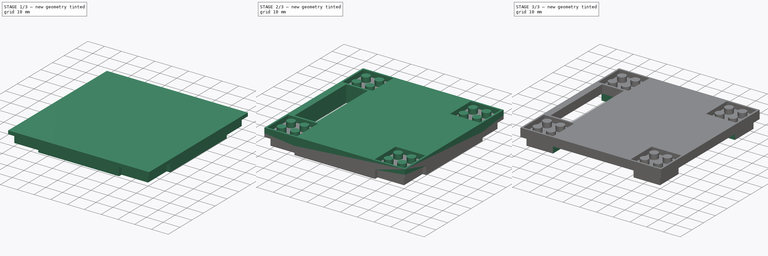
[diagram: build sequence overview — one tinted view per stage of 3, left to right]
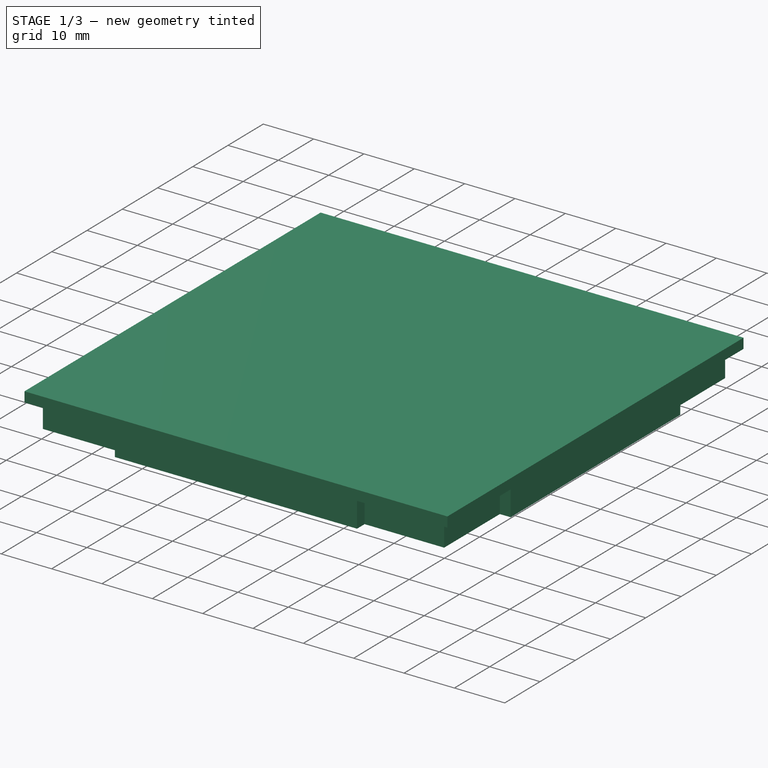
[diagram: stage 1 of 3 — iso view after this stage's code; geometry added in this stage tinted green]
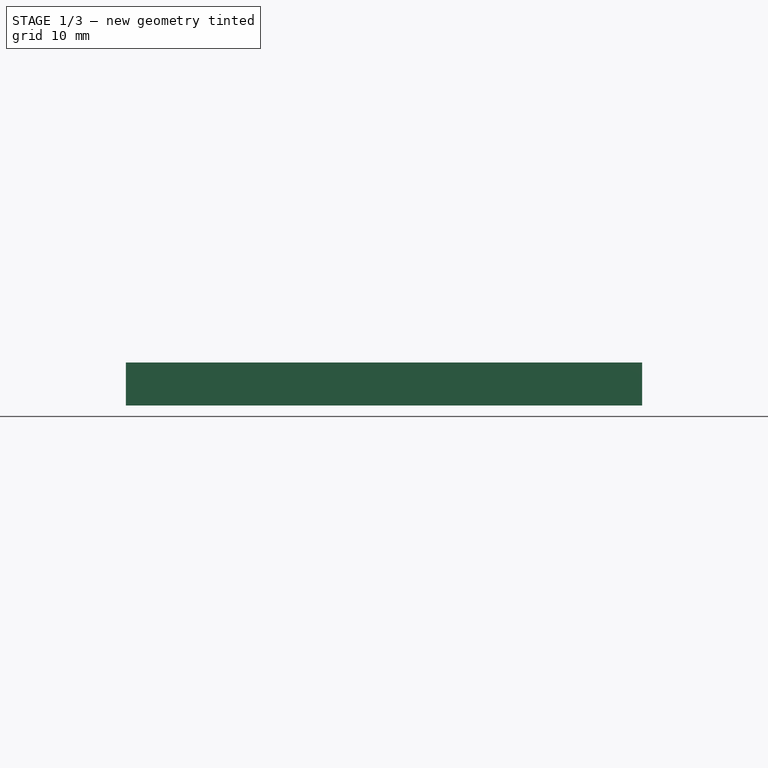
[diagram: stage 1 of 3 — front view after this stage's code; geometry added in this stage tinted green]
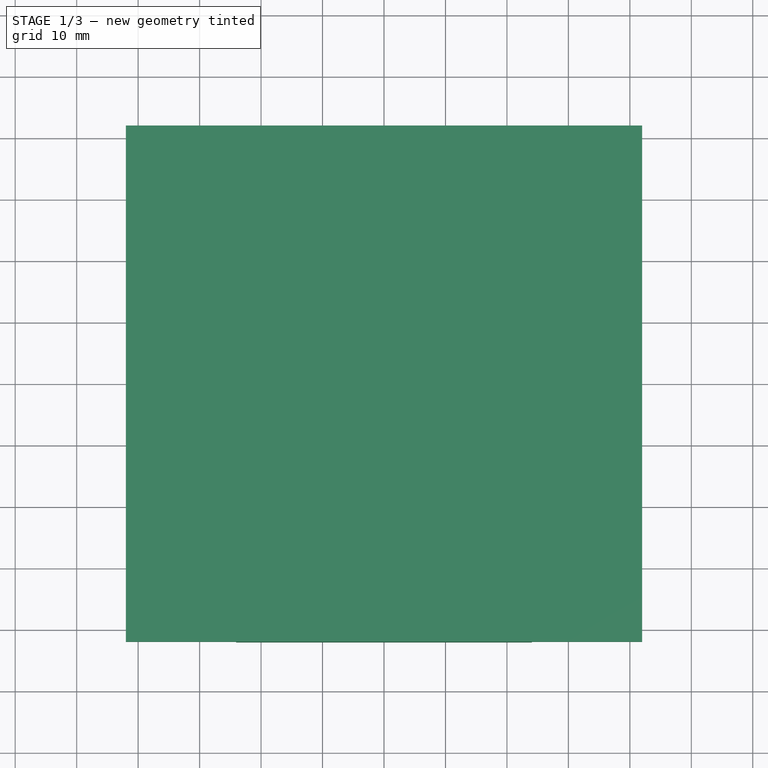
[diagram: stage 1 of 3 — top view after this stage's code; geometry added in this stage tinted green]
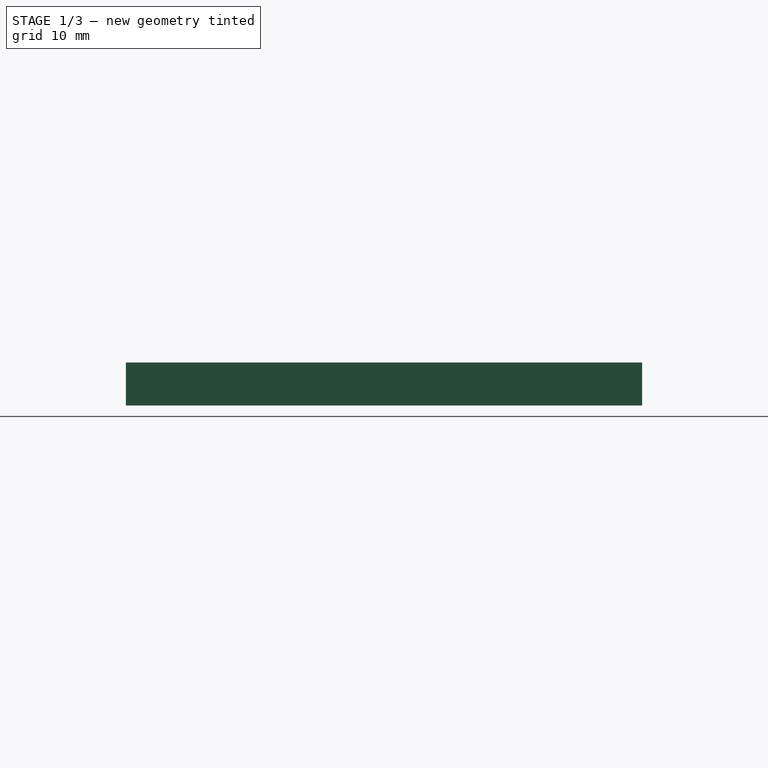
[diagram: stage 1 of 3 — right view after this stage's code; geometry added in this stage tinted green]
FCSTD DOCUMENT  (FreeCAD 0.15R4604 (Git))
Label: Turtles_Filter_Head_1
License: CC-BY 3.0
LicenseURL: http://creativecommons.org/licenses/by/3.0/
objects: Sketcher::SketchObject×7, PartDesign::Pocket×4, PartDesign::Pad×3
note: 21 computed .brp shape members not serialized (recipe doc carries the construction recipe); baked Part::Feature solids carry a one-line shape summary decoded from their .brp

FEATURE [Sketcher::SketchObject] Sketch  label="Starting_Pad_Sketch"
  sketch-geometry (4):
    g0: LineSegment StartX=-42 StartY=42 StartZ=0 EndX=-42 EndY=-42 EndZ=0
    g1: LineSegment StartX=-42 StartY=-42 StartZ=0 EndX=42 EndY=-42 EndZ=0
    g2: LineSegment StartX=42 StartY=-42 StartZ=0 EndX=42 EndY=42 EndZ=0
    g3: LineSegment StartX=42 StartY=42 StartZ=0 EndX=-42 EndY=42 EndZ=0
  constraints (11):
    c: Coincident(g0,g1)
    c: Coincident(g1,g2)
    c: Coincident(g2,g3)
    c: Coincident(g3,g0)
    c: DistanceX(g3) = -84
    c: DistanceY(g2) = 84
    c: DistanceY(g0) = -84
    c: DistanceX(g1) = 84
    c: Vertical(g0)
    c: Horizontal(g1)
    c: Symmetric(g0,g2,g-1)
FEATURE [PartDesign::Pad] Pad  label="Starting_Pad"
  Length = 7
  Length2 = 20
  Sketch = -> Sketch
  Type = 0
FEATURE [Sketcher::SketchObject] Sketch006  label="Lego_Female_Pocket_Sketch"
  Placement = pos=(0,0,0) rot=(1,0,0;3.14159rad)
  Support = -> Pad [Face5]
  sketch-geometry (44):
    g0: LineSegment StartX=-38.65 StartY=38.65 StartZ=0 EndX=-25.25 EndY=38.65 EndZ=0
    g1: LineSegment StartX=-25.25 StartY=38.65 StartZ=0 EndX=-25.25 EndY=25.25 EndZ=0
    g2: LineSegment StartX=-25.25 StartY=25.25 StartZ=0 EndX=-38.65 EndY=25.25 EndZ=0
    g3: LineSegment StartX=-38.65 StartY=25.25 StartZ=0 EndX=-38.65 EndY=38.65 EndZ=0
    g4: Circle CenterX=-31.95 CenterY=31.95 CenterZ=0 NormalX=0 NormalY=0 NormalZ=1 Radius=3.25
    g5: LineSegment StartX=25.25 StartY=38.65 StartZ=0 EndX=38.65 EndY=38.65 EndZ=0
    g6: LineSegment StartX=38.65 StartY=38.65 StartZ=0 EndX=38.65 EndY=25.25 EndZ=0
    g7: LineSegment StartX=38.65 StartY=25.25 StartZ=0 EndX=25.25 EndY=25.25 EndZ=0
    g8: LineSegment StartX=25.25 StartY=25.25 StartZ=0 EndX=25.25 EndY=38.65 EndZ=0
    g9: Circle CenterX=31.95 CenterY=31.95 CenterZ=0 NormalX=0 NormalY=0 NormalZ=1 Radius=3.25
    g10: LineSegment StartX=-38.65 StartY=-38.65 StartZ=0 EndX=-25.25 EndY=-38.65 EndZ=0
    g11: LineSegment StartX=-25.25 StartY=-38.65 StartZ=0 EndX=-25.25 EndY=-25.25 EndZ=0
    g12: LineSegment StartX=-25.25 StartY=-25.25 StartZ=0 EndX=-38.65 EndY=-25.25 EndZ=0
    g13: LineSegment StartX=-38.65 StartY=-25.25 StartZ=0 EndX=-38.65 EndY=-38.65 EndZ=0
    g14: Circle CenterX=-31.95 CenterY=-31.95 CenterZ=0 NormalX=0 NormalY=0 NormalZ=1 Radius=3.25
    g15: LineSegment StartX=25.25 StartY=-25.25 StartZ=0 EndX=38.65 EndY=-25.25 EndZ=0
    g16: LineSegment StartX=38.65 StartY=-25.25 StartZ=0 EndX=38.65 EndY=-38.65 EndZ=0
    g17: LineSegment StartX=38.65 StartY=-38.65 StartZ=0 EndX=25.25 EndY=-38.65 EndZ=0
    g18: LineSegment StartX=25.25 StartY=-38.65 StartZ=0 EndX=25.25 EndY=-25.25 EndZ=0
    g19: Circle CenterX=31.95 CenterY=-31.95 CenterZ=0 NormalX=0 NormalY=0 NormalZ=1 Radius=3.25
    g20: LineSegment StartX=-42 StartY=-24.05 StartZ=0 EndX=-42 EndY=-42 EndZ=0
    g21: LineSegment StartX=-42 StartY=-42 StartZ=0 EndX=-24.05 EndY=-42 EndZ=0
    g22: LineSegment StartX=-24.05 StartY=-42 StartZ=0 EndX=-24.05 EndY=-39.85 EndZ=0
    g23: LineSegment StartX=-24.05 StartY=-39.85 StartZ=0 EndX=-39.85 EndY=-39.85 EndZ=0
    g24: LineSegment StartX=-39.85 StartY=-39.85 StartZ=0 EndX=-39.85 EndY=-24.05 EndZ=0
    g25: LineSegment StartX=-39.85 StartY=-24.05 StartZ=0 EndX=-42 EndY=-24.05 EndZ=0
    g26: LineSegment StartX=24.05 StartY=-42 StartZ=0 EndX=42 EndY=-42 EndZ=0
    g27: LineSegment StartX=42 StartY=-42 StartZ=0 EndX=42 EndY=-24.05 EndZ=0
    g28: LineSegment StartX=42 StartY=-24.05 StartZ=0 EndX=39.85 EndY=-24.05 EndZ=0
    g29: LineSegment StartX=39.85 StartY=-24.05 StartZ=0 EndX=39.85 EndY=-39.85 EndZ=0
    g30: LineSegment StartX=39.85 StartY=-39.85 StartZ=0 EndX=24.05 EndY=-39.85 EndZ=0
    g31: LineSegment StartX=24.05 StartY=-39.85 StartZ=0 EndX=24.05 EndY=-42 EndZ=0
    g32: LineSegment StartX=42 StartY=24.05 StartZ=0 EndX=42 EndY=42 EndZ=0
    g33: LineSegment StartX=42 StartY=42 StartZ=0 EndX=24.05 EndY=42 EndZ=0
    g34: LineSegment StartX=24.05 StartY=42 StartZ=0 EndX=24.05 EndY=39.85 EndZ=0
    g35: LineSegment StartX=24.05 StartY=39.85 StartZ=0 EndX=39.85 EndY=39.85 EndZ=0
    g36: LineSegment StartX=39.85 StartY=39.85 StartZ=0 EndX=39.85 EndY=24.05 EndZ=0
    g37: LineSegment StartX=39.85 StartY=24.05 StartZ=0 EndX=42 EndY=24.05 EndZ=0
    g38: LineSegment StartX=-42 StartY=24.05 StartZ=0 EndX=-42 EndY=42 EndZ=0
    g39: LineSegment StartX=-42 StartY=42 StartZ=0 EndX=-24.05 EndY=42 EndZ=0
    g40: LineSegment StartX=-24.05 StartY=42 StartZ=0 EndX=-24.05 EndY=39.85 EndZ=0
    g41: LineSegment StartX=-24.05 StartY=39.85 StartZ=0 EndX=-39.85 EndY=39.85 EndZ=0
    g42: LineSegment StartX=-39.85 StartY=39.85 StartZ=0 EndX=-39.85 EndY=24.05 EndZ=0
    g43: LineSegment StartX=-39.85 StartY=24.05 StartZ=0 EndX=-42 EndY=24.05 EndZ=0
  constraints (132):
    c: Vertical(g3)
    c: Horizontal(g0)
    c: Vertical(g1)
    c: Horizontal(g2)
    c: Coincident(g0,g3)
    c: Coincident(g3,g2)
    c: Coincident(g2,g1)
    c: Coincident(g1,g0)
    c: DistanceX(g0) = 13.4
    c: DistanceY(g3) = 13.4
    c: DistanceX(g-1,g1) = -25.25
    c: DistanceY(g-1,g1) = 25.25
    c: Radius(g4) = 3.25
    c: DistanceX(g-1,g4) = -31.95
    c: DistanceY(g-1,g4) = 31.95
    c: Coincident(g10,g11)
    c: Coincident(g11,g12)
    c: Coincident(g12,g13)
    c: Coincident(g13,g10)
    c: Horizontal(g10)
    c: Horizontal(g12)
    c: Vertical(g11)
    c: Vertical(g13)
    c: Coincident(g15,g16)
    c: Coincident(g16,g17)
    c: Coincident(g17,g18)
    c: Coincident(g18,g15)
    c: Horizontal(g15)
    c: Horizontal(g17)
    c: Vertical(g16)
    c: Vertical(g18)
    c: Vertical(g8)
    c: Vertical(g6)
    c: Horizontal(g5)
    c: Horizontal(g7)
    c: DistanceX(g-1,g14) = -31.95
    c: DistanceY(g-1,g14) = -31.95
    c: DistanceX(g10) = 13.4
    c: DistanceY(g13) = -13.4
    c: DistanceX(g-1,g11) = -25.25
    c: DistanceY(g-1,g11) = -25.25
    c: DistanceY(g16) = -13.4
    c: DistanceX(g17) = -13.4
    c: DistanceX(g5) = 13.4
    c: DistanceY(g6) = -13.4
    c: DistanceX(g-1,g19) = 31.95
    c: DistanceY(g-1,g19) = -31.95
    c: DistanceX(g-1,g15) = 25.25
    c: DistanceY(g-1,g15) = -25.25
    c: DistanceX(g-1,g9) = 31.95
    c: DistanceY(g-1,g9) = 31.95
    c: DistanceX(g-1,g7) = 25.25
    c: DistanceY(g-1,g7) = 25.25
    c: Radius(g14) = 3.25
    c: Radius(g19) = 3.25
    c: Radius(g9) = 3.25
    c: Coincident(g8,g5)
    c: Coincident(g7,g6)
    c: Coincident(g5,g6)
    c: Coincident(g8,g7)
    c: Coincident(g20,g21)
    c: Coincident(g21,g22)
    c: Coincident(g23,g24)
    c: Coincident(g24,g25)
    c: Coincident(g25,g20)
    c: Horizontal(g25)
    c: DistanceY(g-1,g20) = -24.05
    c: DistanceX(g-1,g21) = -24.05
    c: Vertical(g22)
    c: DistanceX(g-1,g23) = -39.85
    c: Vertical(g24)
    c: Horizontal(g23)
    c: DistanceY(g-1,g23) = -39.85
    c: Coincident(g22,g23)
    c: DistanceX(g-1,g20) = -42
    c: DistanceY(g-1,g20) = -42
    c: Vertical(g20)
    c: Horizontal(g21)
    c: Coincident(g26,g27)
    c: Coincident(g27,g28)
    c: Coincident(g28,g29)
    c: Coincident(g29,g30)
    c: Coincident(g30,g31)
    c: Coincident(g31,g26)
    c: Horizontal(g30)
    c: Horizontal(g26)
    c: Vertical(g29)
    c: Vertical(g27)
    c: DistanceX(g26) = 24.05
    c: Vertical(g31)
    c: DistanceY(g-1,g27) = -24.05
    c: Horizontal(g28)
    c: DistanceY(g-1,g29) = -39.85
    c: DistanceX(g-1,g29) = 39.85
    c: DistanceX(g-1,g26) = 42
    c: DistanceY(g-1,g26) = -42
    c: Vertical(g32)
    c: Coincident(g32,g33)
    c: Horizontal(g33)
    c: Coincident(g33,g34)
    c: Vertical(g34)
    c: Coincident(g34,g35)
    c: Horizontal(g35)
    c: Coincident(g35,g36)
    c: Vertical(g36)
    c: Coincident(g36,g37)
    c: Coincident(g37,g32)
    c: DistanceX(g33) = 24.05
    c: DistanceY(g-1,g32) = 24.05
    c: Horizontal(g37)
    c: DistanceX(g-1,g35) = 39.85
    c: DistanceY(g-1,g35) = 39.85
    c: DistanceY(g-1,g32) = 42
    c: DistanceX(g-1,g32) = 42
    c: Vertical(g38)
    c: Coincident(g38,g39)
    c: Horizontal(g39)
    c: Coincident(g39,g40)
    c: Vertical(g40)
    c: Coincident(g40,g41)
    c: Horizontal(g41)
    c: Coincident(g41,g42)
    c: Vertical(g42)
    c: Coincident(g42,g43)
    c: Coincident(g43,g38)
    c: Horizontal(g43)
    c: DistanceX(g-1,g39) = -24.05
    c: DistanceY(g-1,g38) = 24.05
    c: DistanceX(g-1,g38) = -42
    c: DistanceY(g-1,g38) = 42
    c: DistanceY(g-1,g41) = 39.85
    c: DistanceX(g-1,g41) = -39.85
FEATURE [PartDesign::Pocket] Pocket  label="Lego_Female_Pocket"
  Length = 5
  Sketch = -> Sketch006
  Type = 0
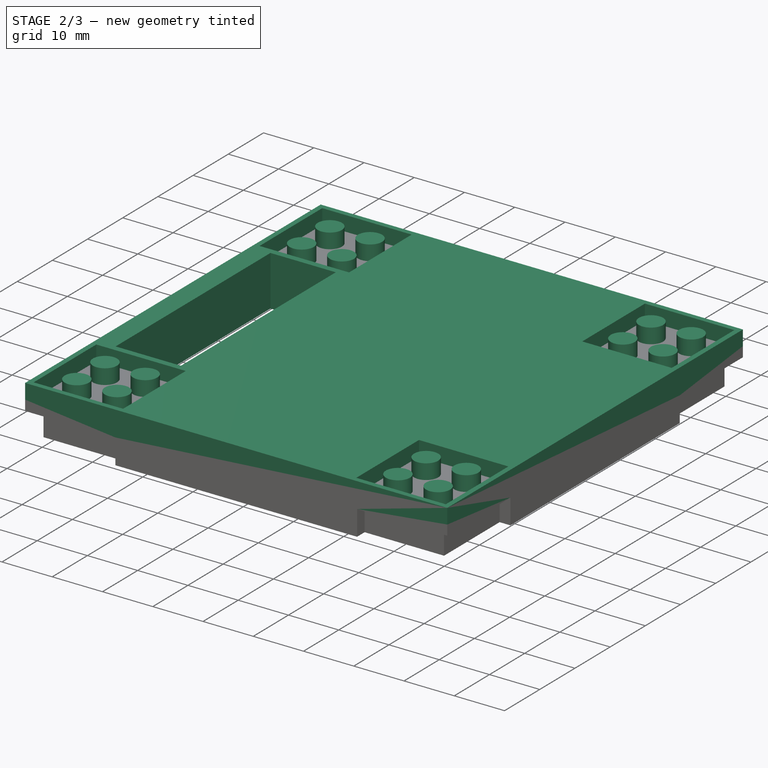
[diagram: stage 2 of 3 — iso view after this stage's code; geometry added in this stage tinted green]
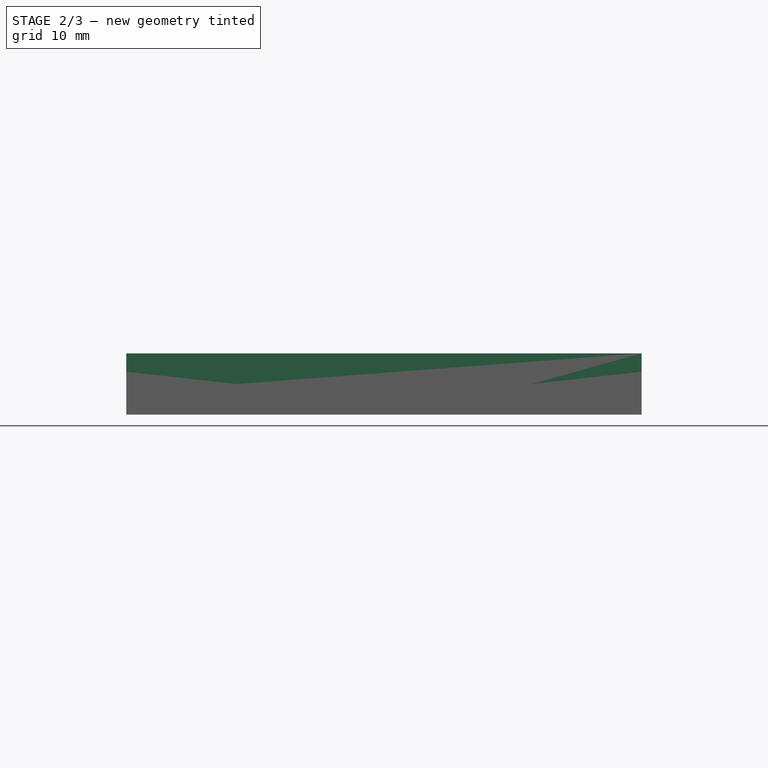
[diagram: stage 2 of 3 — front view after this stage's code; geometry added in this stage tinted green]
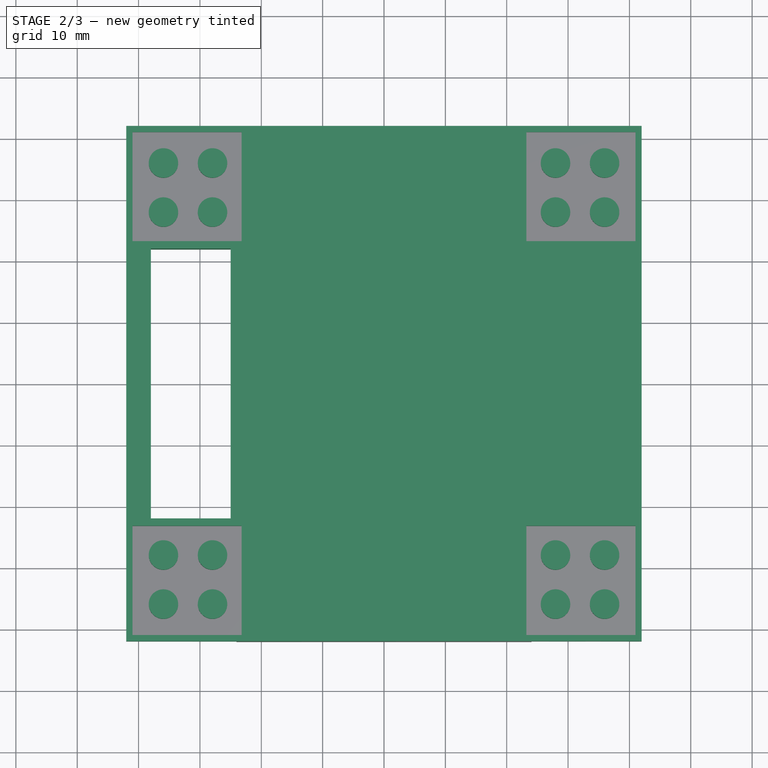
[diagram: stage 2 of 3 — top view after this stage's code; geometry added in this stage tinted green]
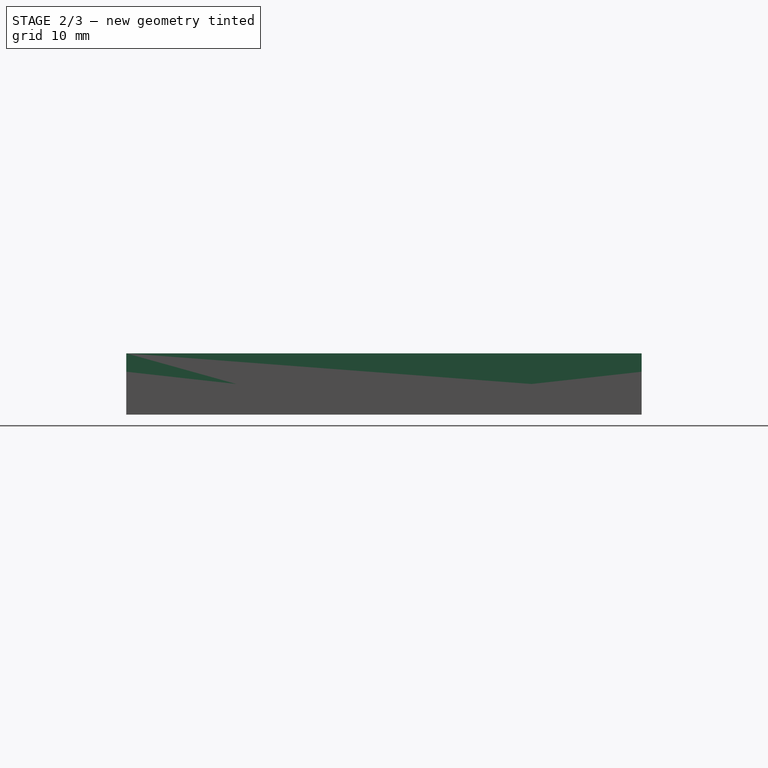
[diagram: stage 2 of 3 — right view after this stage's code; geometry added in this stage tinted green]
FEATURE [Sketcher::SketchObject] Sketch004  label="Lego_Male_Pad_Sketch"
  Placement = pos=(0,0,7) rot=(0,0,1;0rad)
  Support = -> Pocket [Face8]
  sketch-geometry (16):
    g0: Circle CenterX=-35.95 CenterY=-35.95 CenterZ=0 NormalX=0 NormalY=0 NormalZ=1 Radius=2.4
    g1: Circle CenterX=35.95 CenterY=35.95 CenterZ=0 NormalX=0 NormalY=0 NormalZ=1 Radius=2.4
    g2: Circle CenterX=35.95 CenterY=-35.95 CenterZ=0 NormalX=0 NormalY=0 NormalZ=1 Radius=2.4
    g3: Circle CenterX=-35.95 CenterY=35.95 CenterZ=0 NormalX=0 NormalY=0 NormalZ=1 Radius=2.4
    g4: Circle CenterX=-27.95 CenterY=35.95 CenterZ=0 NormalX=0 NormalY=0 NormalZ=1 Radius=2.4
    g5: Circle CenterX=-27.95 CenterY=27.95 CenterZ=0 NormalX=0 NormalY=0 NormalZ=1 Radius=2.4
    g6: Circle CenterX=27.95 CenterY=27.95 CenterZ=0 NormalX=0 NormalY=0 NormalZ=1 Radius=2.4
    g7: Circle CenterX=27.95 CenterY=35.95 CenterZ=0 NormalX=0 NormalY=0 NormalZ=1 Radius=2.4
    g8: Circle CenterX=-35.95 CenterY=27.95 CenterZ=0 NormalX=0 NormalY=0 NormalZ=1 Radius=2.4
    g9: Circle CenterX=35.95 CenterY=27.95 CenterZ=0 NormalX=0 NormalY=0 NormalZ=1 Radius=2.4
    g10: Circle CenterX=27.95 CenterY=-27.95 CenterZ=0 NormalX=0 NormalY=0 NormalZ=1 Radius=2.4
    g11: Circle CenterX=27.95 CenterY=-35.95 CenterZ=0 NormalX=0 NormalY=0 NormalZ=1 Radius=2.4
    g12: Circle CenterX=35.95 CenterY=-27.95 CenterZ=0 NormalX=0 NormalY=0 NormalZ=1 Radius=2.4
    g13: Circle CenterX=-27.95 CenterY=-27.95 CenterZ=0 NormalX=0 NormalY=0 NormalZ=1 Radius=2.4
    g14: Circle CenterX=-27.95 CenterY=-35.95 CenterZ=0 NormalX=0 NormalY=0 NormalZ=1 Radius=2.4
    g15: Circle CenterX=-35.95 CenterY=-27.95 CenterZ=0 NormalX=0 NormalY=0 NormalZ=1 Radius=2.4
  constraints (48):
    c: Radius(g4) = 2.4
    c: Equal(g4,g3)
    c: Equal(g4,g8)
    c: Equal(g4,g5)
    c: Equal(g4,g6)
    c: Equal(g4,g7)
    c: Equal(g4,g1)
    c: Equal(g4,g9)
    c: Equal(g4,g13)
    c: Equal(g4,g14)
    c: Equal(g4,g0)
    c: Equal(g4,g15)
    c: Equal(g4,g11)
    c: Equal(g4,g2)
    c: Equal(g4,g12)
    c: Equal(g4,g10)
    c: DistanceX(g-1,g5) = -27.95
    c: DistanceX(g-1,g4) = -27.95
    c: DistanceX(g-1,g3) = -35.95
    c: DistanceX(g-1,g8) = -35.95
    c: DistanceY(g-1,g5) = 27.95
    c: DistanceY(g-1,g8) = 27.95
    c: DistanceY(g-1,g4) = 35.95
    c: DistanceY(g-1,g3) = 35.95
    c: DistanceY(g-1,g13) = -27.95
    c: DistanceY(g-1,g15) = -27.95
    c: DistanceX(g-1,g13) = -27.95
    c: DistanceX(g-1,g14) = -27.95
    c: DistanceX(g-1,g0) = -35.95
    c: DistanceX(g-1,g15) = -35.95
    c: DistanceX(g-1,g11) = 27.95
    c: DistanceX(g-1,g10) = 27.95
    c: DistanceX(g-1,g12) = 35.95
    c: DistanceX(g-1,g2) = 35.95
    c: DistanceY(g-1,g12) = -27.95
    c: DistanceY(g-1,g10) = -27.95
    c: DistanceY(g-1,g2) = -35.95
    c: DistanceY(g-1,g11) = -35.95
    c: DistanceX(g-1,g6) = 27.95
    c: DistanceX(g-1,g7) = 27.95
    c: DistanceX(g-1,g9) = 35.95
    c: DistanceX(g-1,g1) = 35.95
    c: DistanceY(g-1,g9) = 27.95
    c: DistanceY(g-1,g6) = 27.95
    c: DistanceY(g-1,g1) = 35.95
    c: DistanceY(g-1,g7) = 35.95
    c: DistanceY(g-1,g14) = -35.95
    c: DistanceY(g-1,g0) = -35.95
FEATURE [PartDesign::Pad] Pad001  label="Lego_Male_Pad"
  Length = 3
  Length2 = 20
  Sketch = -> Sketch004
  Type = 0
FEATURE [Sketcher::SketchObject] Sketch011  label="Top_Flush_Pad_Sketch"
  Placement = pos=(0,0,7) rot=(0,0,1;0rad)
  Support = -> Pad001 [Face8]
  sketch-geometry (20):
    g0: LineSegment StartX=-42 StartY=42 StartZ=0 EndX=-42 EndY=-42 EndZ=0
    g1: LineSegment StartX=-42 StartY=-42 StartZ=0 EndX=42 EndY=-42 EndZ=0
    g2: LineSegment StartX=42 StartY=-42 StartZ=0 EndX=42 EndY=42 EndZ=0
    g3: LineSegment StartX=42 StartY=42 StartZ=0 EndX=-42 EndY=42 EndZ=0
    g4: LineSegment StartX=-41 StartY=41 StartZ=0 EndX=-23.2 EndY=41 EndZ=0
    g5: LineSegment StartX=-23.2 StartY=41 StartZ=0 EndX=-23.2 EndY=23.2 EndZ=0
    g6: LineSegment StartX=-23.2 StartY=23.2 StartZ=0 EndX=-41 EndY=23.2 EndZ=0
    g7: LineSegment StartX=-41 StartY=23.2 StartZ=0 EndX=-41 EndY=41 EndZ=0
    g8: LineSegment StartX=-23.2 StartY=-23.2 StartZ=0 EndX=-41 EndY=-23.2 EndZ=0
    g9: LineSegment StartX=-41 StartY=-23.2 StartZ=0 EndX=-41 EndY=-41 EndZ=0
    g10: LineSegment StartX=-41 StartY=-41 StartZ=0 EndX=-23.2 EndY=-41 EndZ=0
    g11: LineSegment StartX=-23.2 StartY=-41 StartZ=0 EndX=-23.2 EndY=-23.2 EndZ=0
    g12: LineSegment StartX=41 StartY=23.2 StartZ=0 EndX=23.2 EndY=23.2 EndZ=0
    g13: LineSegment StartX=23.2 StartY=23.2 StartZ=0 EndX=23.2 EndY=41 EndZ=0
    g14: LineSegment StartX=23.2 StartY=41 StartZ=0 EndX=41 EndY=41 EndZ=0
    g15: LineSegment StartX=41 StartY=41 StartZ=0 EndX=41 EndY=23.2 EndZ=0
    g16: LineSegment StartX=23.2 StartY=-23.2 StartZ=0 EndX=41 EndY=-23.2 EndZ=0
    g17: LineSegment StartX=41 StartY=-23.2 StartZ=0 EndX=41 EndY=-41 EndZ=0
    g18: LineSegment StartX=41 StartY=-41 StartZ=0 EndX=23.2 EndY=-41 EndZ=0
    g19: LineSegment StartX=23.2 StartY=-41 StartZ=0 EndX=23.2 EndY=-23.2 EndZ=0
  constraints (61):
    c: DistanceX(g3) = -84
    c: DistanceY(g0) = -84
    c: DistanceX(g1) = 84
    c: DistanceY(g2) = 84
    c: Horizontal(g3)
    c: Vertical(g0)
    c: Horizontal(g1)
    c: Coincident(g3,g0)
    c: Coincident(g3,g2)
    c: Coincident(g0,g1)
    c: Vertical(g2)
    c: DistanceX(g-1,g0) = -42
    c: DistanceY(g-1,g0) = -42
    c: Coincident(g4,g5)
    c: Coincident(g5,g6)
    c: Coincident(g6,g7)
    c: Coincident(g7,g4)
    c: Horizontal(g4)
    c: Horizontal(g6)
    c: Vertical(g5)
    c: Vertical(g7)
    c: DistanceX(g-1,g5) = -23.2
    c: DistanceY(g-1,g5) = 23.2
    c: DistanceY(g5) = -17.8
    c: DistanceX(g6) = -17.8
    c: Coincident(g8,g9)
    c: Coincident(g9,g10)
    c: Coincident(g10,g11)
    c: Coincident(g11,g8)
    c: Horizontal(g8)
    c: Horizontal(g10)
    c: Vertical(g9)
    c: Vertical(g11)
    c: DistanceY(g-1,g8) = -23.2
    c: DistanceX(g-1,g8) = -23.2
    c: DistanceX(g8) = -17.8
    c: DistanceY(g11) = 17.8
    c: Coincident(g12,g13)
    c: Coincident(g13,g14)
    c: Coincident(g14,g15)
    c: Coincident(g15,g12)
    c: Horizontal(g12)
    c: Horizontal(g14)
    c: Vertical(g13)
    c: Vertical(g15)
    c: DistanceX(g-1,g12) = 23.2
    c: DistanceY(g-1,g12) = 23.2
    c: DistanceY(g13) = 17.8
    c: DistanceX(g12) = -17.8
    c: Coincident(g16,g17)
    c: Coincident(g17,g18)
    c: Coincident(g18,g19)
    c: Coincident(g19,g16)
    c: Horizontal(g16)
    c: Horizontal(g18)
    c: Vertical(g17)
    c: Vertical(g19)
    c: DistanceY(g-1,g16) = -23.2
    c: DistanceX(g-1,g18) = 23.2
    c: DistanceY(g19) = 17.8
    c: DistanceX(g16) = 17.8
FEATURE [PartDesign::Pad] Pad002  label="Top_Flush_Pad"
  Length = 3
  Length2 = 20
  Sketch = -> Sketch011
  Type = 0
FEATURE [Sketcher::SketchObject] Sketch005  label="Top_Hole_Pocket_Sketch"
  Placement = pos=(0,0,10) rot=(0,0,1;0rad)
  Support = -> Pad002 [Face51]
  sketch-geometry (4):
    g0: LineSegment StartX=-38 StartY=22 StartZ=0 EndX=-25 EndY=22 EndZ=0
    g1: LineSegment StartX=-25 StartY=22 StartZ=0 EndX=-25 EndY=-22 EndZ=0
    g2: LineSegment StartX=-25 StartY=-22 StartZ=0 EndX=-38 EndY=-22 EndZ=0
    g3: LineSegment StartX=-38 StartY=-22 StartZ=0 EndX=-38 EndY=22 EndZ=0
  constraints (12):
    c: Coincident(g1,g0)
    c: Coincident(g1,g2)
    c: Coincident(g2,g3)
    c: Coincident(g3,g0)
    c: Horizontal(g2)
    c: Vertical(g3)
    c: Horizontal(g0)
    c: Vertical(g1)
    c: DistanceX(g-1,g2) = -38
    c: DistanceY(g-1,g1) = -22
    c: DistanceY(g-1,g0) = 22
    c: DistanceX(g-1,g1) = -25
FEATURE [PartDesign::Pocket] Pocket001  label="Top_Hole_Pocket"
  Length = 5
  Sketch = -> Sketch005
  Type = 1
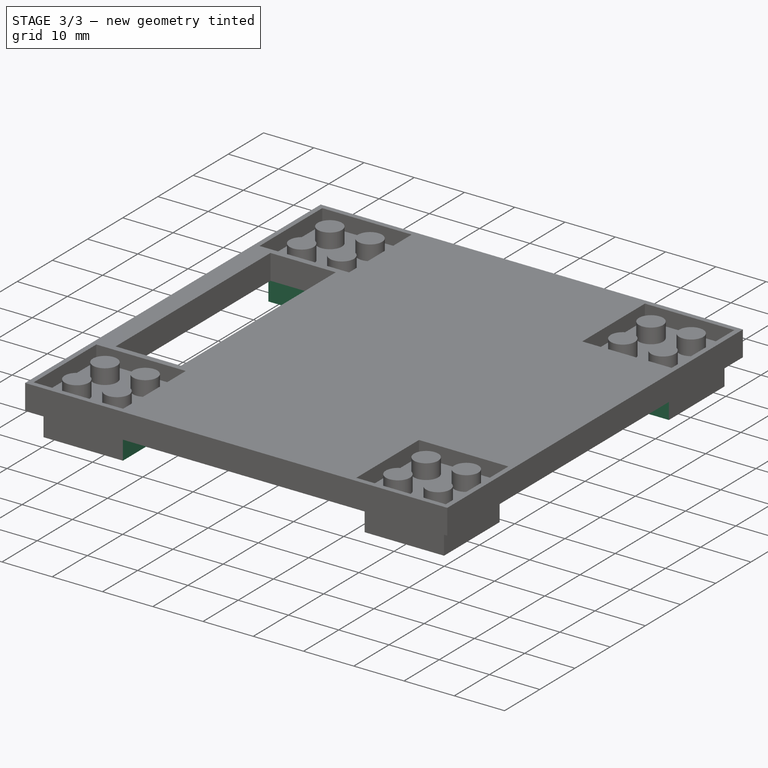
[diagram: stage 3 of 3 — iso view after this stage's code; geometry added in this stage tinted green]
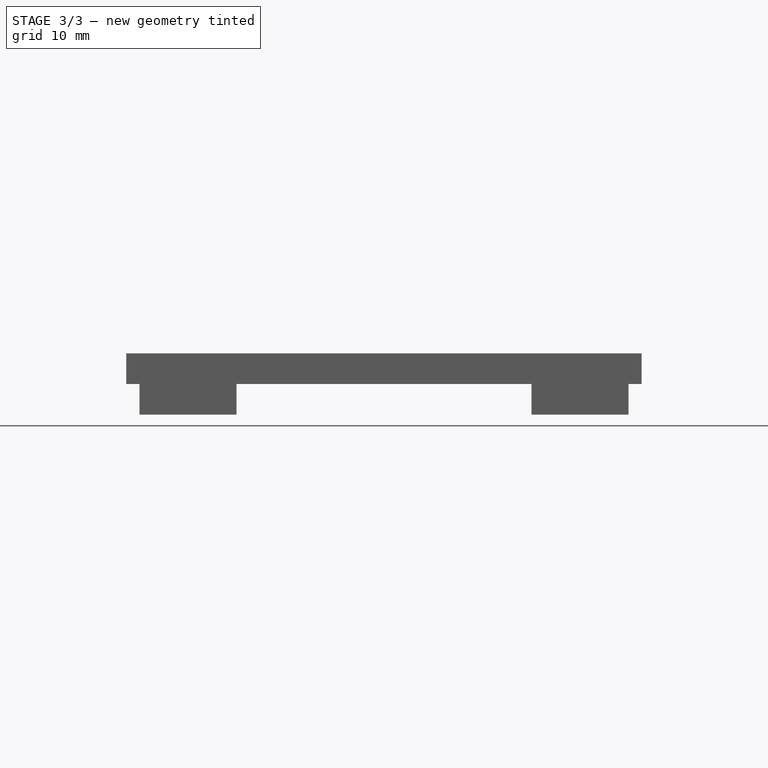
[diagram: stage 3 of 3 — front view after this stage's code; geometry added in this stage tinted green]
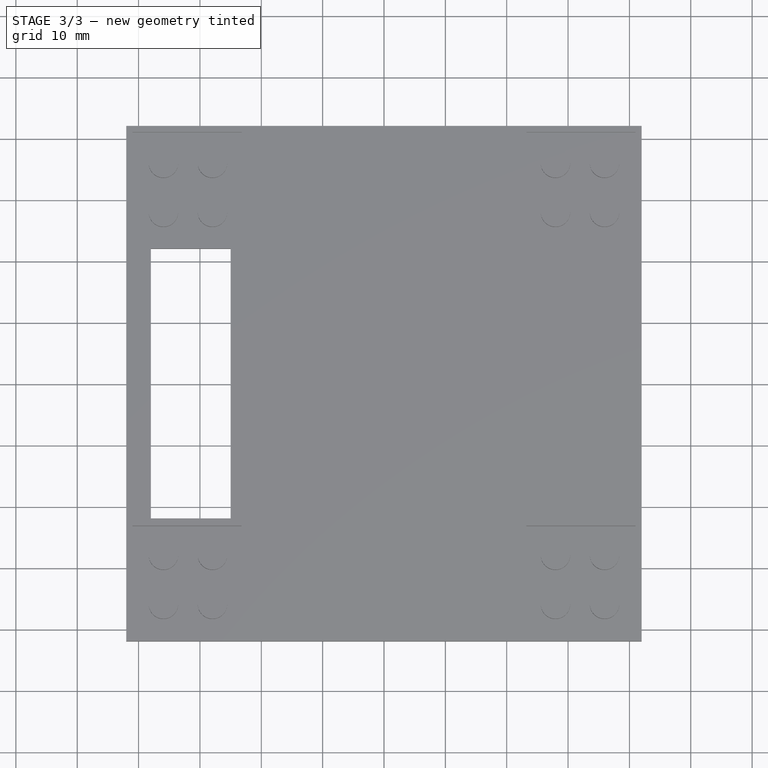
[diagram: stage 3 of 3 — top view after this stage's code; geometry added in this stage tinted green]
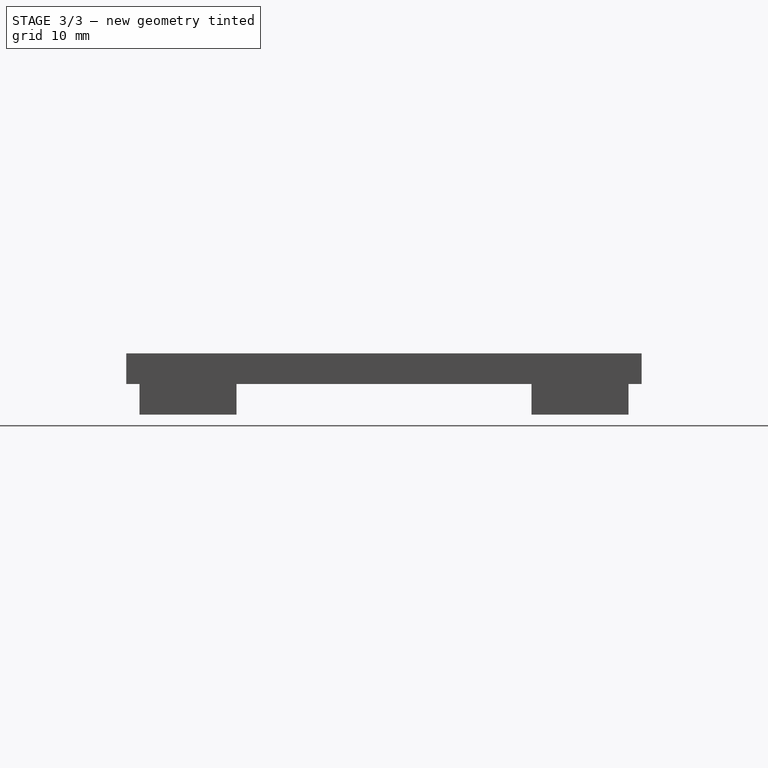
[diagram: stage 3 of 3 — right view after this stage's code; geometry added in this stage tinted green]
FEATURE [Sketcher::SketchObject] Sketch012  label="Front_Entry_Pocket_Sketch"
  Placement = pos=(0,-42,0) rot=(1,0,0;1.5708rad)
  Support = -> Pocket001 [Face11]
  sketch-geometry (4):
    g0: LineSegment StartX=24.05 StartY=0 StartZ=0 EndX=-24.05 EndY=0 EndZ=0
    g1: LineSegment StartX=-24.05 StartY=0 StartZ=0 EndX=-24.05 EndY=5 EndZ=0
    g2: LineSegment StartX=-24.05 StartY=5 StartZ=0 EndX=24.05 EndY=5 EndZ=0
    g3: LineSegment StartX=24.05 StartY=5 StartZ=0 EndX=24.05 EndY=0 EndZ=0
  constraints (12):
    c: Coincident(g0,g1)
    c: Coincident(g1,g2)
    c: Coincident(g2,g3)
    c: Coincident(g3,g0)
    c: Horizontal(g0)
    c: Horizontal(g2)
    c: Vertical(g1)
    c: Vertical(g3)
    c: PointOnObject(g0,g-1)
    c: DistanceX(g-1,g0) = 24.05
    c: DistanceX(g-1,g0) = -24.05
    c: DistanceY(g3) = -5
FEATURE [PartDesign::Pocket] Pocket002  label="Front_Entry_Pocket"
  Length = 5
  Sketch = -> Sketch012
  Type = 1
FEATURE [Sketcher::SketchObject] Sketch013  label="Right_Entry_Pocket_Sketch"
  Placement = pos=(42,0,0) rot=(0.57735,0.57735,0.57735;2.0944rad)
  Support = -> Pocket002 [Face12]
  sketch-geometry (4):
    g0: LineSegment StartX=24.05 StartY=0 StartZ=0 EndX=-24.05 EndY=0 EndZ=0
    g1: LineSegment StartX=-24.05 StartY=0 StartZ=0 EndX=-24.05 EndY=5 EndZ=0
    g2: LineSegment StartX=-24.05 StartY=5 StartZ=0 EndX=24.05 EndY=5 EndZ=0
    g3: LineSegment StartX=24.05 StartY=5 StartZ=0 EndX=24.05 EndY=0 EndZ=0
  constraints (12):
    c: Coincident(g0,g1)
    c: Coincident(g1,g2)
    c: Coincident(g2,g3)
    c: Coincident(g3,g0)
    c: Horizontal(g0)
    c: Horizontal(g2)
    c: Vertical(g1)
    c: Vertical(g3)
    c: PointOnObject(g0,g-1)
    c: DistanceX(g-1,g0) = 24.05
    c: DistanceX(g-1,g0) = -24.05
    c: DistanceY(g1) = 5
FEATURE [PartDesign::Pocket] Pocket003  label="Right_Entry_Pocket"
  Length = 5
  Sketch = -> Sketch013
  Type = 1
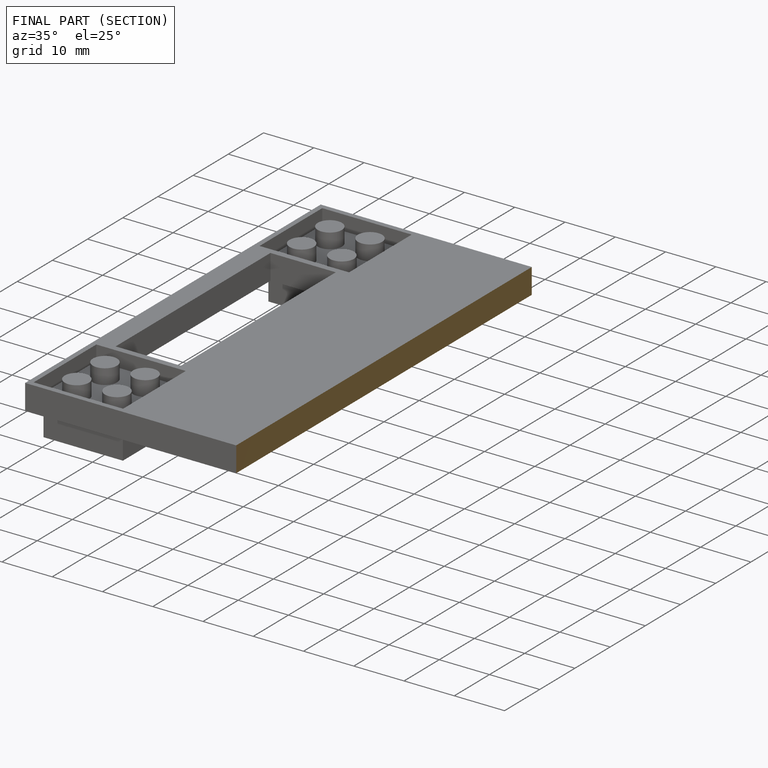
[diagram: finished part — half-section view (interior)]
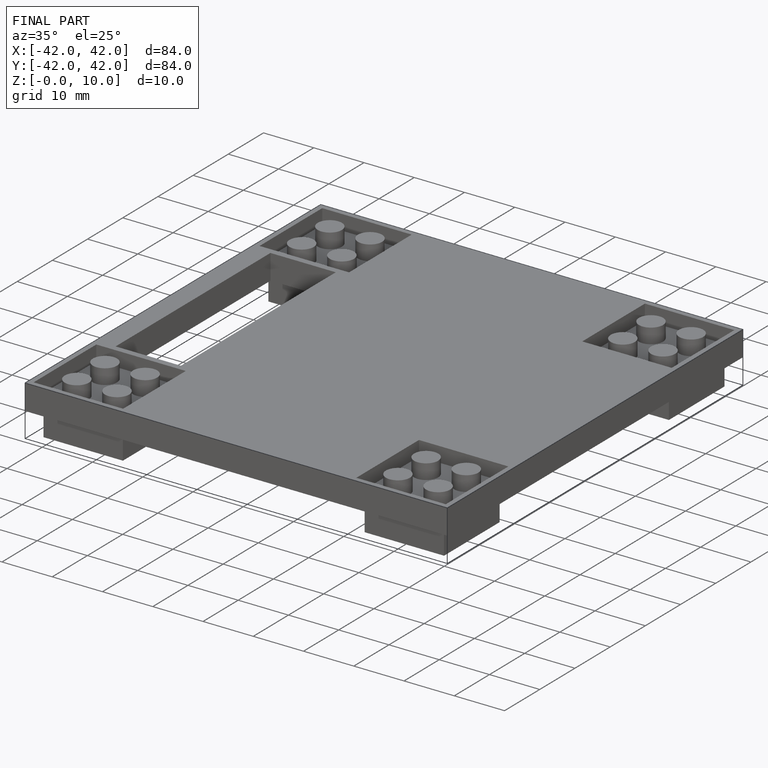
[diagram: finished part — iso view with bounding-box wireframe]
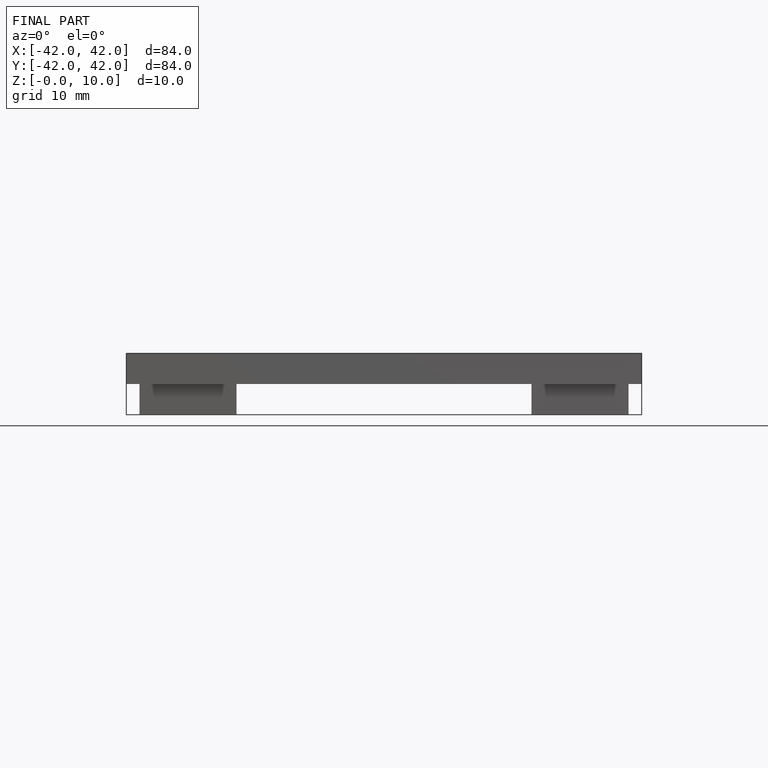
[diagram: finished part — front view with bounding-box wireframe]
